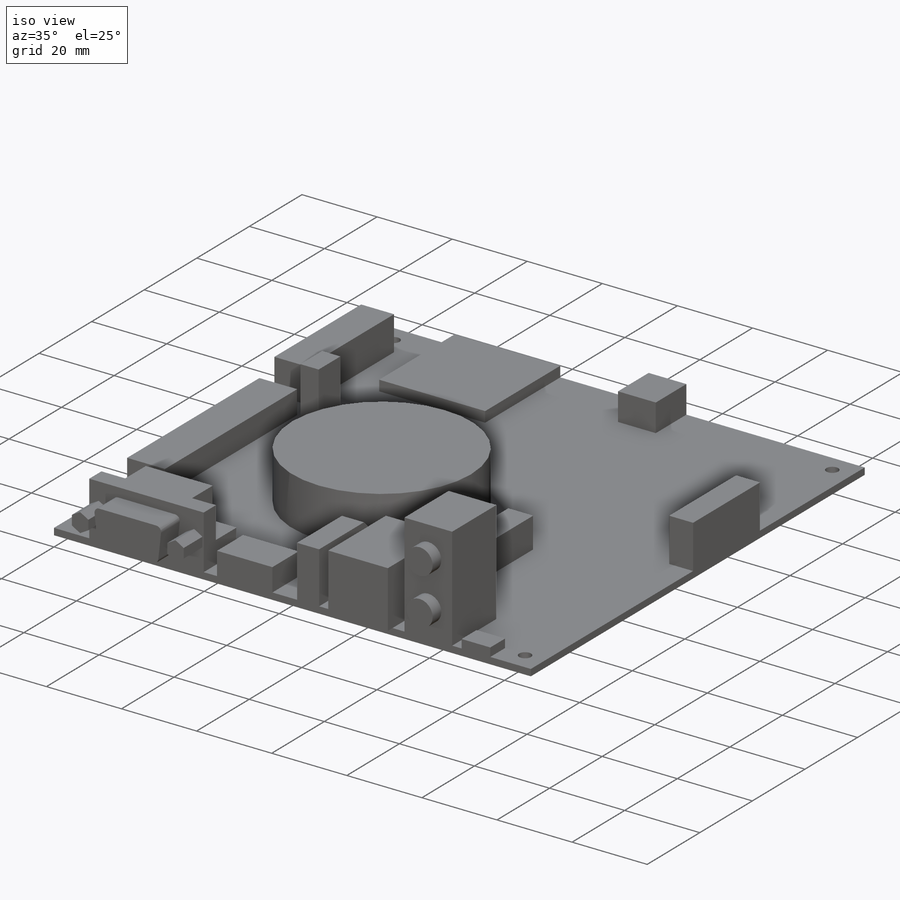
[diagram: iso view]
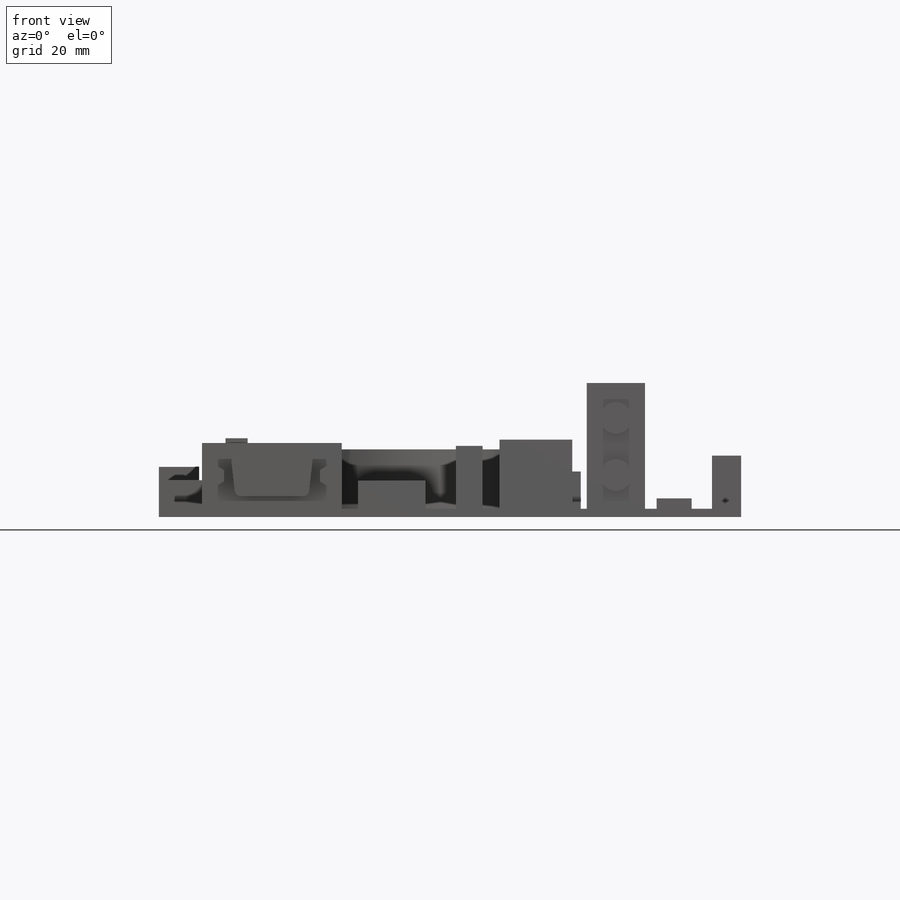
[diagram: front view]
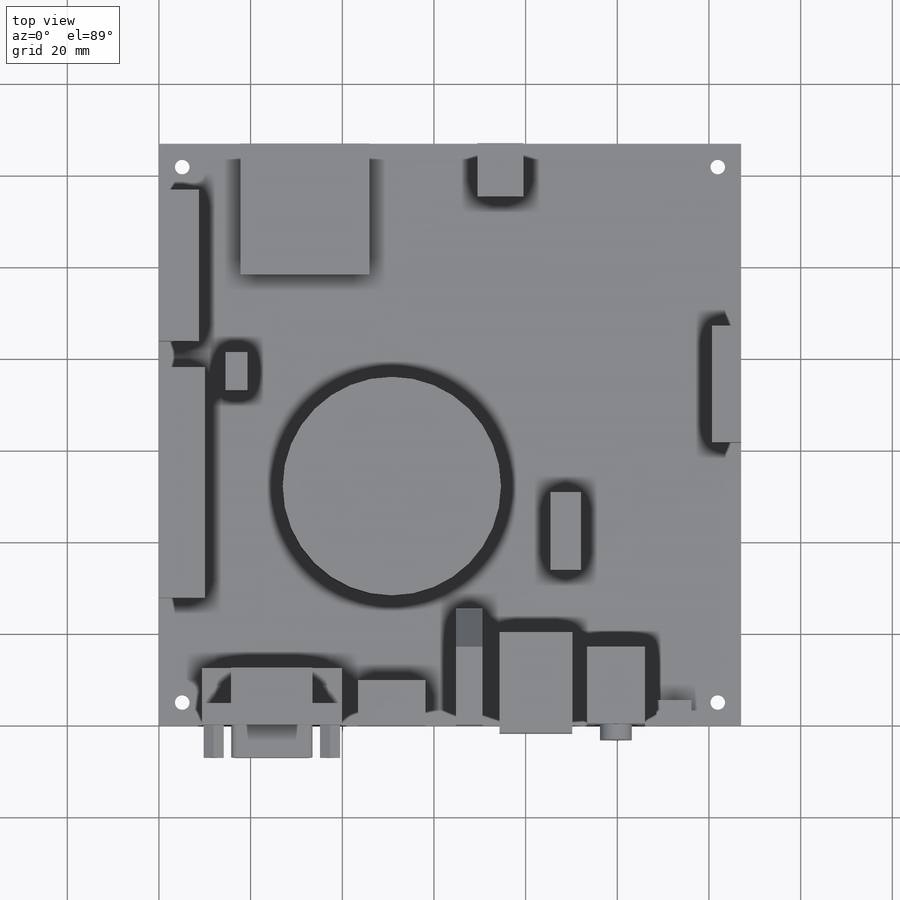
[diagram: top view]
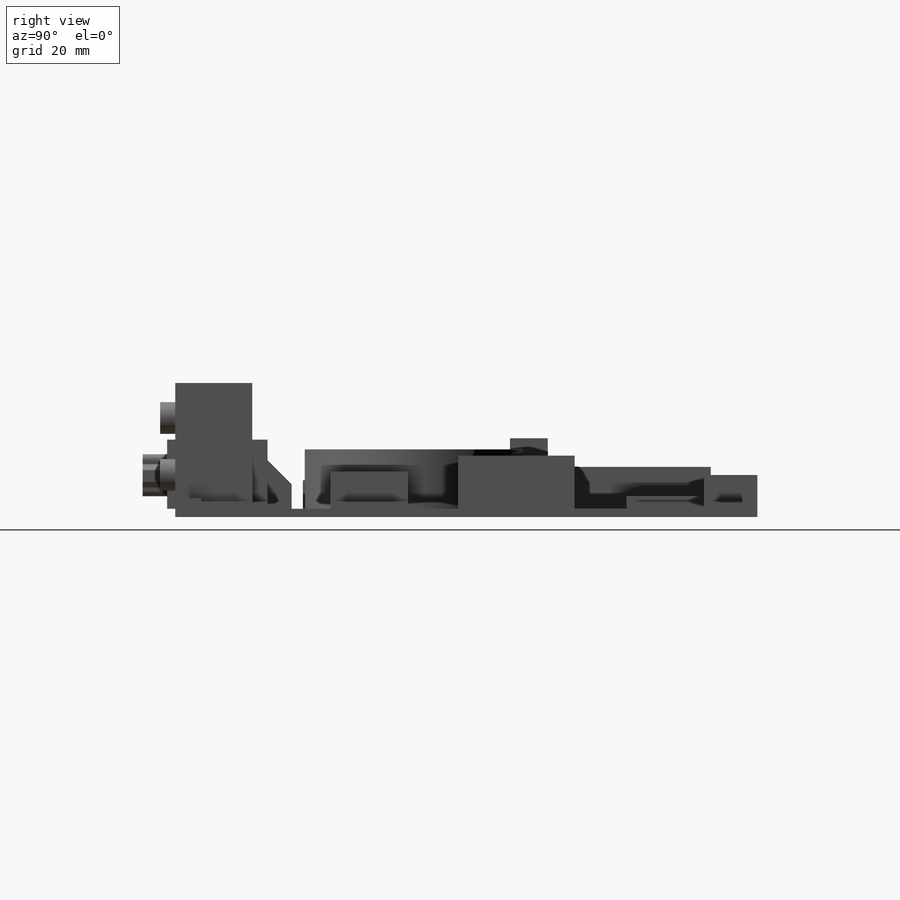
[diagram: right view]
SOLIDWORKS PART (.sldprt)
format: sldprt  version: not decoded by parser v0  size: 603,136 bytes
history: native  units: mm
features: sketch x18, extrude x17, material x1, chamfer x1, cut_extrude x1 (+13 scaffold rows collapsed)
feature tree (51):
  scaffold x13  (default folders/planes/origin — collapsed)
  material  "Material <not specified>"
  sketch  "Sketch1"  dims[c1.D3=3.175mm c1.D1=127.0mm c2.D3=127.0mm c2.D2=5.08mm]
  extrude  "Boss-Extrude1"  Depth=1.778mm
  sketch  "Sketch2"  dims[D1=28.194mm D2=28.575mm D3=45.9232mm]
  extrude  "Boss-Extrude2"  Depth=2.794mm
  sketch  "Sketch3"  dims[D1=10.0584mm D2=11.6332mm D3=57.5564mm]
  extrude  "Boss-Extrude3"  Depth=7.366mm
  sketch  "Sketch4"  dims[D1=25.4mm D2=6.35mm D3=65.278mm]
  extrude  "Boss-Extrude4"  Depth=11.6078mm
  sketch  "Sketch5"  dims[D1=8.763mm D2=33.02mm D3=43.18mm]
  extrude  "Boss-Extrude5"  Depth=9.144mm
  sketch  "Sketch6"  dims[D1=10.0584mm D2=50.292mm D3=78.1304mm]
  extrude  "Boss-Extrude6"  Depth=6.223mm
  sketch  "Sketch7"  dims[D1=4.826mm D2=8.255mm D3=19.3548mm D4=53.975mm]
  extrude  "Boss-Extrude7"  Depth=15.3924mm
  sketch  "Sketch8"  dims[D1=7.62mm D2=5.588mm D3=18.415mm]
  extrude  "Boss-Extrude8"  Depth=2.286mm
  sketch  "Sketch9"  dims[D1=47.625mm D2=50.8mm D3=74.93mm]
  extrude  "Boss-Extrude9"  Depth=12.954mm
  sketch  "Sketch10"  dims[D1=12.7mm D2=16.7894mm D3=33.655mm]
  extrude  "Boss-Extrude10"  Depth=27.432mm
  sketch  "Sketch11"  dims[D1=6.9342mm D2=7.62mm D3=12.446mm]
  extrude  "Boss-Extrude11"  Depth=3.302mm
  sketch  "Sketch12"  dims[D1=15.875mm D2=21.9202mm D3=1.778mm D4=31.75mm]
  extrude  "Boss-Extrude12"  Depth=15.0876mm
  sketch  "Sketch13"  dims[D1=5.842mm D2=25.4mm D3=25.4mm]
  extrude  "Boss-Extrude13"  Depth=13.716mm
  chamfer  "Chamfer1"  Distance=8.382mm Angle=45deg
  sketch  "Sketch14"  dims[D1=14.732mm D2=9.8806mm D3=27.178mm]
  extrude  "Boss-Extrude14"  Depth=6.096mm
  sketch  "Sketch15"  dims[D1=16.9164mm D2=6.604mm D3=41.5798mm D4=50.8mm]
  extrude  "Boss-Extrude15"  Depth=8.128mm
  sketch  "Sketch16"  dims[D1=30.48mm D2=12.446mm D3=39.878mm]
  extrude  "Boss-Extrude16"  Depth=14.351mm
  sketch  "Sketch17"  dims[D1=6.35mm D2=6.35mm D3=4.6228mm D4=4.6228mm]
  cut_extrude  "Cut-Extrude1"  Depth=8.382mm
  sketch  "Sketch18"  dims[D6=1.27mm D1=5.08mm D2=2.54mm D3=18.034mm D4=16.002mm D5=9.144mm]
  extrude  "Boss-Extrude17"  Depth=7.112mm
decode coverage: 37 of 37 modeling features carry decoded parameters
note: suppression state not decoded; provenance and decode notes live in map.json
